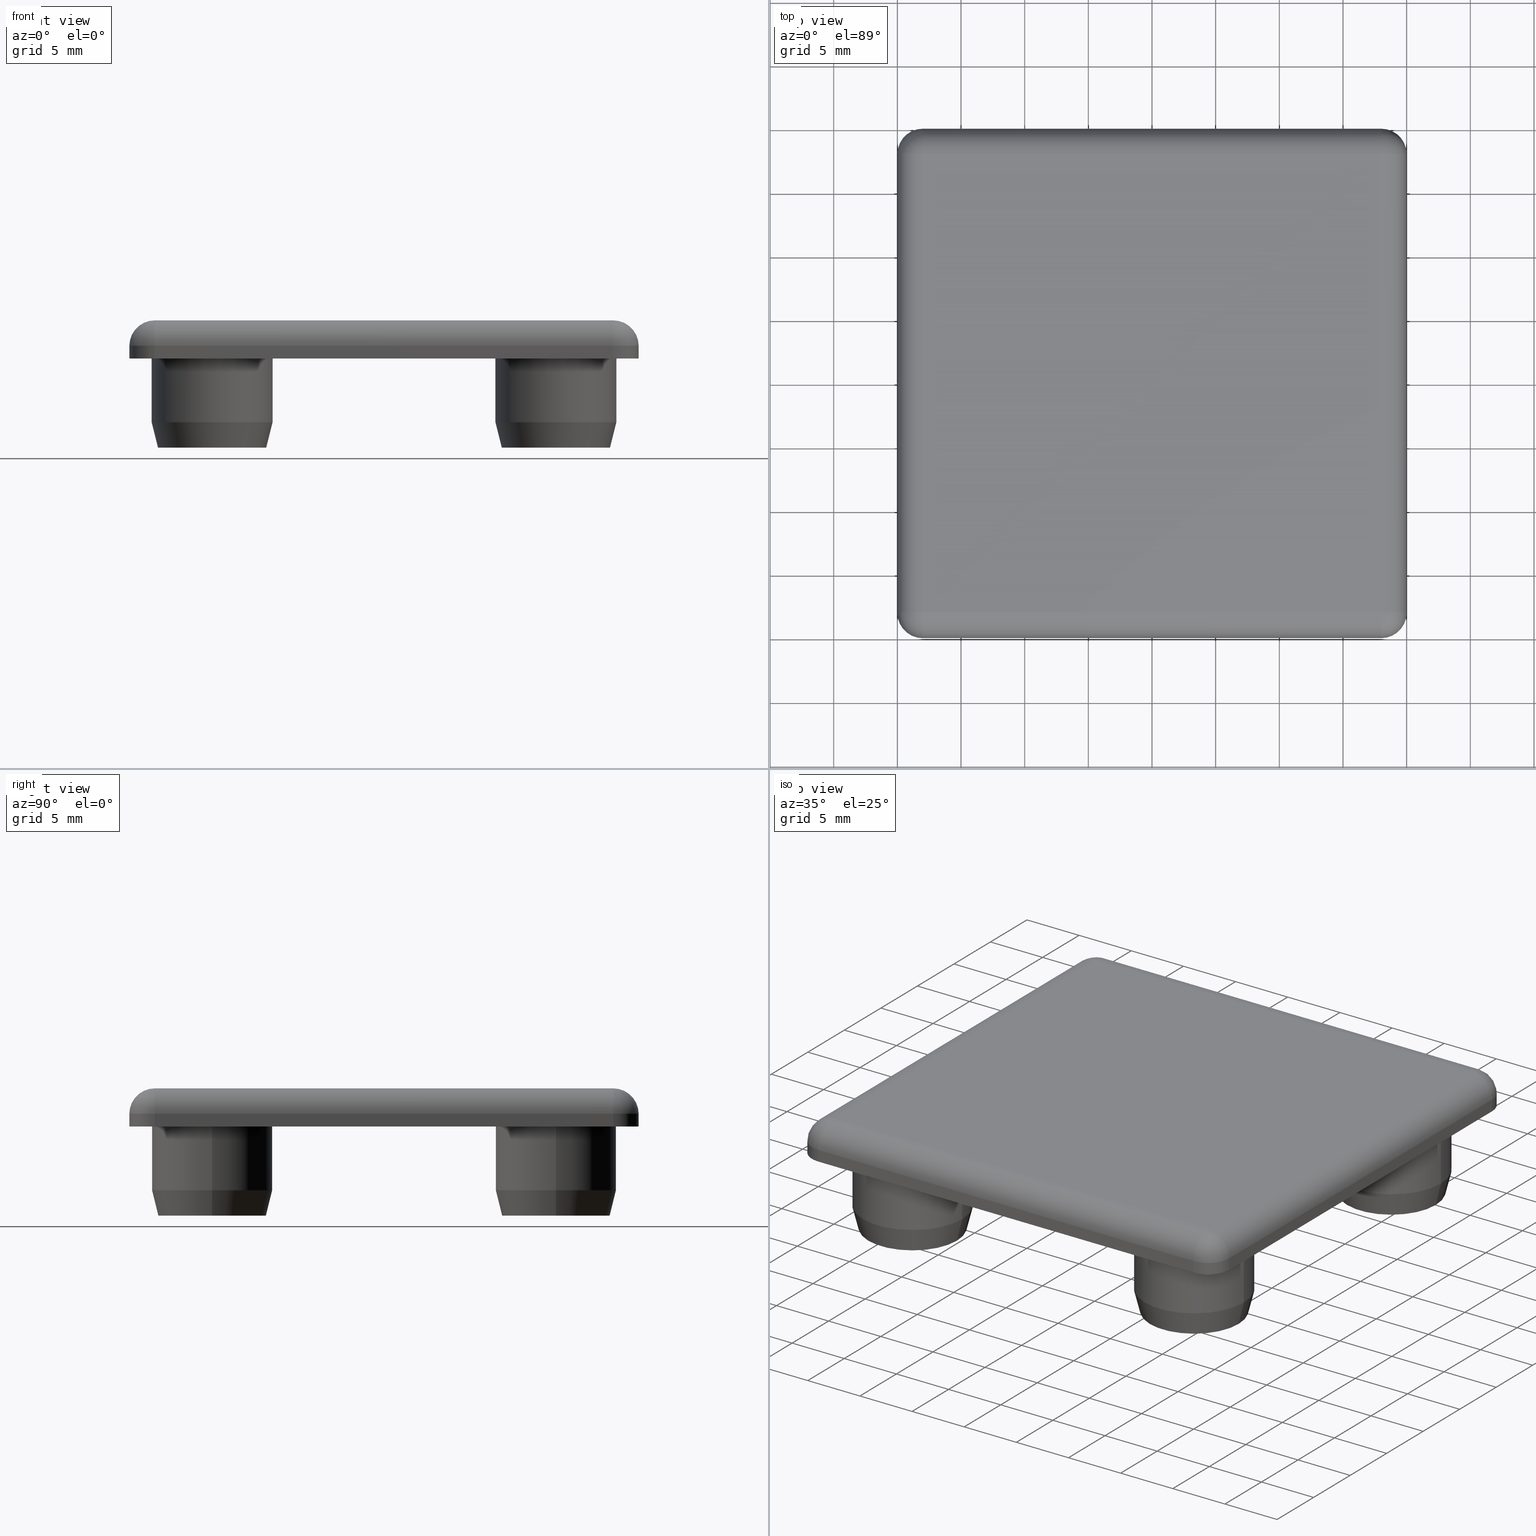
[diagram: canonical four-view strip — front | top / right | iso, engineering-drawing reading convention]
A machine part, canonical four-view strip (front | top / right | iso — engineering-drawing reading convention). The complete STEP part file that produces these views, byte-faithful:
ISO-10303-21;
HEADER;
/* Generated by software containing ST-Developer
 * from STEP Tools, Inc. (www.steptools.com) 
 */

FILE_DESCRIPTION(
/* description */ ('TAPPO 40x40 NERO GOLA 45'),
/* implementation_level */ '2;1');

FILE_NAME(
/* name */ 
'Q:\\Catalogo\\2_Accessori Dierre\\Per Download Web e catalogo cartace
o\\CATALOGO TAPPI DI CHIUSURA\\PAGINA 89\\DTPTR0000038.stp',
/* time_stamp */ '2018-11-08T12:38:21+01:00',
/* author */ ('fzagni'),
/* organization */ (''),
/* preprocessor_version */ 'ST-DEVELOPER v16.1',
/* originating_system */ 'Autodesk Inventor 2016',
/* authorisation */ '');

FILE_SCHEMA (('AUTOMOTIVE_DESIGN { 1 0 10303 214 3 1 1 }'));
ENDSEC;

DATA;
#10=MECHANICAL_DESIGN_GEOMETRIC_PRESENTATION_REPRESENTATION('',(#13),#875);
#11=SHAPE_REPRESENTATION_RELATIONSHIP('SRR','None',#884,#12);
#12=ADVANCED_BREP_SHAPE_REPRESENTATION('',(#14),#874);
#13=STYLED_ITEM('',(#893),#14);
#14=MANIFOLD_SOLID_BREP('Solido1',#491);
#15=SPHERICAL_SURFACE('',#541,2.);
#16=SPHERICAL_SURFACE('',#545,2.);
#17=SPHERICAL_SURFACE('',#549,2.);
#18=SPHERICAL_SURFACE('',#555,2.);
#19=LINE('',#800,#39);
#20=LINE('',#804,#40);
#21=LINE('',#808,#41);
#22=LINE('',#810,#42);
#23=LINE('',#811,#43);
#24=LINE('',#817,#44);
#25=LINE('',#821,#45);
#26=LINE('',#825,#46);
#27=LINE('',#828,#47);
#28=LINE('',#834,#48);
#29=LINE('',#835,#49);
#30=LINE('',#841,#50);
#31=LINE('',#842,#51);
#32=LINE('',#850,#52);
#33=LINE('',#851,#53);
#34=LINE('',#853,#54);
#35=LINE('',#861,#55);
#36=LINE('',#862,#56);
#37=LINE('',#864,#57);
#38=LINE('',#866,#58);
#39=VECTOR('',#649,36.);
#40=VECTOR('',#652,36.);
#41=VECTOR('',#657,36.);
#42=VECTOR('',#658,36.);
#43=VECTOR('',#659,36.);
#44=VECTOR('',#664,36.);
#45=VECTOR('',#667,36.);
#46=VECTOR('',#670,36.);
#47=VECTOR('',#673,36.);
#48=VECTOR('',#682,1.);
#49=VECTOR('',#683,1.);
#50=VECTOR('',#692,1.);
#51=VECTOR('',#693,1.);
#52=VECTOR('',#704,1.);
#53=VECTOR('',#705,1.);
#54=VECTOR('',#708,36.);
#55=VECTOR('',#719,1.);
#56=VECTOR('',#720,1.);
#57=VECTOR('',#723,36.);
#58=VECTOR('',#726,36.);
#59=PLANE('',#498);
#60=PLANE('',#507);
#61=PLANE('',#516);
#62=PLANE('',#520);
#63=PLANE('',#521);
#64=PLANE('',#522);
#65=PLANE('',#528);
#66=PLANE('',#535);
#67=PLANE('',#536);
#68=PLANE('',#562);
#69=PLANE('',#563);
#70=PLANE('',#564);
#71=PLANE('',#565);
#72=PLANE('',#566);
#73=CYLINDRICAL_SURFACE('',#496,4.75);
#74=CYLINDRICAL_SURFACE('',#500,3.25);
#75=CYLINDRICAL_SURFACE('',#505,4.75);
#76=CYLINDRICAL_SURFACE('',#509,3.25);
#77=CYLINDRICAL_SURFACE('',#514,4.75);
#78=CYLINDRICAL_SURFACE('',#518,3.25);
#79=CYLINDRICAL_SURFACE('',#526,4.75);
#80=CYLINDRICAL_SURFACE('',#530,3.25);
#81=CYLINDRICAL_SURFACE('',#532,2.);
#82=CYLINDRICAL_SURFACE('',#544,2.);
#83=CYLINDRICAL_SURFACE('',#548,2.);
#84=CYLINDRICAL_SURFACE('',#553,2.);
#85=CYLINDRICAL_SURFACE('',#554,2.);
#86=CYLINDRICAL_SURFACE('',#559,2.);
#87=CYLINDRICAL_SURFACE('',#560,2.);
#88=CYLINDRICAL_SURFACE('',#561,2.);
#89=FACE_BOUND('',#148,.T.);
#90=FACE_BOUND('',#150,.T.);
#91=FACE_BOUND('',#152,.T.);
#92=FACE_BOUND('',#154,.T.);
#93=FACE_BOUND('',#156,.T.);
#94=FACE_BOUND('',#158,.T.);
#95=FACE_BOUND('',#160,.T.);
#96=FACE_BOUND('',#162,.T.);
#97=FACE_BOUND('',#164,.T.);
#98=FACE_BOUND('',#166,.T.);
#99=FACE_BOUND('',#168,.T.);
#100=FACE_BOUND('',#170,.T.);
#101=FACE_BOUND('',#175,.T.);
#102=FACE_BOUND('',#177,.T.);
#103=FACE_BOUND('',#179,.T.);
#104=FACE_BOUND('',#181,.T.);
#105=FACE_BOUND('',#185,.T.);
#106=FACE_BOUND('',#186,.T.);
#107=FACE_BOUND('',#187,.T.);
#108=FACE_BOUND('',#188,.T.);
#109=FACE_OUTER_BOUND('',#147,.T.);
#110=FACE_OUTER_BOUND('',#149,.T.);
#111=FACE_OUTER_BOUND('',#151,.T.);
#112=FACE_OUTER_BOUND('',#153,.T.);
#113=FACE_OUTER_BOUND('',#155,.T.);
#114=FACE_OUTER_BOUND('',#157,.T.);
#115=FACE_OUTER_BOUND('',#159,.T.);
#116=FACE_OUTER_BOUND('',#161,.T.);
#117=FACE_OUTER_BOUND('',#163,.T.);
#118=FACE_OUTER_BOUND('',#165,.T.);
#119=FACE_OUTER_BOUND('',#167,.T.);
#120=FACE_OUTER_BOUND('',#169,.T.);
#121=FACE_OUTER_BOUND('',#171,.T.);
#122=FACE_OUTER_BOUND('',#172,.T.);
#123=FACE_OUTER_BOUND('',#173,.T.);
#124=FACE_OUTER_BOUND('',#174,.T.);
#125=FACE_OUTER_BOUND('',#176,.T.);
#126=FACE_OUTER_BOUND('',#178,.T.);
#127=FACE_OUTER_BOUND('',#180,.T.);
#128=FACE_OUTER_BOUND('',#182,.T.);
#129=FACE_OUTER_BOUND('',#183,.T.);
#130=FACE_OUTER_BOUND('',#184,.T.);
#131=FACE_OUTER_BOUND('',#189,.T.);
#132=FACE_OUTER_BOUND('',#190,.T.);
#133=FACE_OUTER_BOUND('',#191,.T.);
#134=FACE_OUTER_BOUND('',#192,.T.);
#135=FACE_OUTER_BOUND('',#193,.T.);
#136=FACE_OUTER_BOUND('',#194,.T.);
#137=FACE_OUTER_BOUND('',#195,.T.);
#138=FACE_OUTER_BOUND('',#196,.T.);
#139=FACE_OUTER_BOUND('',#197,.T.);
#140=FACE_OUTER_BOUND('',#198,.T.);
#141=FACE_OUTER_BOUND('',#199,.T.);
#142=FACE_OUTER_BOUND('',#200,.T.);
#143=FACE_OUTER_BOUND('',#201,.T.);
#144=FACE_OUTER_BOUND('',#202,.T.);
#145=FACE_OUTER_BOUND('',#203,.T.);
#146=FACE_OUTER_BOUND('',#204,.T.);
#147=EDGE_LOOP('',(#337));
#148=EDGE_LOOP('',(#338));
#149=EDGE_LOOP('',(#339));
#150=EDGE_LOOP('',(#340));
#151=EDGE_LOOP('',(#341));
#152=EDGE_LOOP('',(#342));
#153=EDGE_LOOP('',(#343));
#154=EDGE_LOOP('',(#344));
#155=EDGE_LOOP('',(#345));
#156=EDGE_LOOP('',(#346));
#157=EDGE_LOOP('',(#347));
#158=EDGE_LOOP('',(#348));
#159=EDGE_LOOP('',(#349));
#160=EDGE_LOOP('',(#350));
#161=EDGE_LOOP('',(#351));
#162=EDGE_LOOP('',(#352));
#163=EDGE_LOOP('',(#353));
#164=EDGE_LOOP('',(#354));
#165=EDGE_LOOP('',(#355));
#166=EDGE_LOOP('',(#356));
#167=EDGE_LOOP('',(#357));
#168=EDGE_LOOP('',(#358));
#169=EDGE_LOOP('',(#359));
#170=EDGE_LOOP('',(#360));
#171=EDGE_LOOP('',(#361));
#172=EDGE_LOOP('',(#362));
#173=EDGE_LOOP('',(#363));
#174=EDGE_LOOP('',(#364));
#175=EDGE_LOOP('',(#365));
#176=EDGE_LOOP('',(#366));
#177=EDGE_LOOP('',(#367));
#178=EDGE_LOOP('',(#368));
#179=EDGE_LOOP('',(#369));
#180=EDGE_LOOP('',(#370));
#181=EDGE_LOOP('',(#371));
#182=EDGE_LOOP('',(#372,#373,#374,#375));
#183=EDGE_LOOP('',(#376,#377,#378,#379));
#184=EDGE_LOOP('',(#380,#381,#382,#383,#384,#385,#386,#387));
#185=EDGE_LOOP('',(#388));
#186=EDGE_LOOP('',(#389));
#187=EDGE_LOOP('',(#390));
#188=EDGE_LOOP('',(#391));
#189=EDGE_LOOP('',(#392,#393,#394));
#190=EDGE_LOOP('',(#395,#396,#397,#398));
#191=EDGE_LOOP('',(#399,#400,#401));
#192=EDGE_LOOP('',(#402,#403,#404,#405));
#193=EDGE_LOOP('',(#406,#407,#408));
#194=EDGE_LOOP('',(#409,#410,#411,#412));
#195=EDGE_LOOP('',(#413,#414,#415,#416));
#196=EDGE_LOOP('',(#417,#418,#419));
#197=EDGE_LOOP('',(#420,#421,#422,#423));
#198=EDGE_LOOP('',(#424,#425,#426,#427));
#199=EDGE_LOOP('',(#428,#429,#430,#431));
#200=EDGE_LOOP('',(#432,#433,#434,#435));
#201=EDGE_LOOP('',(#436,#437,#438,#439));
#202=EDGE_LOOP('',(#440));
#203=EDGE_LOOP('',(#441,#442,#443,#444));
#204=EDGE_LOOP('',(#445,#446,#447,#448));
#205=CIRCLE('',#494,4.75);
#206=CIRCLE('',#495,4.25);
#207=CIRCLE('',#497,4.75);
#208=CIRCLE('',#499,3.25);
#209=CIRCLE('',#501,3.25);
#210=CIRCLE('',#503,4.75);
#211=CIRCLE('',#504,4.25);
#212=CIRCLE('',#506,4.75);
#213=CIRCLE('',#508,3.25);
#214=CIRCLE('',#510,3.25);
#215=CIRCLE('',#512,4.75);
#216=CIRCLE('',#513,4.25);
#217=CIRCLE('',#515,4.75);
#218=CIRCLE('',#517,3.25);
#219=CIRCLE('',#519,3.25);
#220=CIRCLE('',#524,4.75);
#221=CIRCLE('',#525,4.25);
#222=CIRCLE('',#527,4.75);
#223=CIRCLE('',#529,3.25);
#224=CIRCLE('',#531,3.25);
#225=CIRCLE('',#533,2.);
#226=CIRCLE('',#534,2.);
#227=CIRCLE('',#537,2.);
#228=CIRCLE('',#538,2.);
#229=CIRCLE('',#539,2.);
#230=CIRCLE('',#540,2.);
#231=CIRCLE('',#542,2.);
#232=CIRCLE('',#543,2.);
#233=CIRCLE('',#546,2.);
#234=CIRCLE('',#547,2.);
#235=CIRCLE('',#550,2.);
#236=CIRCLE('',#551,2.);
#237=CIRCLE('',#552,2.);
#238=CIRCLE('',#556,2.);
#239=CIRCLE('',#557,2.);
#240=CIRCLE('',#558,2.);
#241=VERTEX_POINT('',#739);
#242=VERTEX_POINT('',#741);
#243=VERTEX_POINT('',#744);
#244=VERTEX_POINT('',#747);
#245=VERTEX_POINT('',#750);
#246=VERTEX_POINT('',#753);
#247=VERTEX_POINT('',#755);
#248=VERTEX_POINT('',#758);
#249=VERTEX_POINT('',#761);
#250=VERTEX_POINT('',#764);
#251=VERTEX_POINT('',#767);
#252=VERTEX_POINT('',#769);
#253=VERTEX_POINT('',#772);
#254=VERTEX_POINT('',#775);
#255=VERTEX_POINT('',#778);
#256=VERTEX_POINT('',#784);
#257=VERTEX_POINT('',#786);
#258=VERTEX_POINT('',#789);
#259=VERTEX_POINT('',#792);
#260=VERTEX_POINT('',#795);
#261=VERTEX_POINT('',#798);
#262=VERTEX_POINT('',#799);
#263=VERTEX_POINT('',#801);
#264=VERTEX_POINT('',#803);
#265=VERTEX_POINT('',#807);
#266=VERTEX_POINT('',#809);
#267=VERTEX_POINT('',#813);
#268=VERTEX_POINT('',#814);
#269=VERTEX_POINT('',#816);
#270=VERTEX_POINT('',#818);
#271=VERTEX_POINT('',#820);
#272=VERTEX_POINT('',#822);
#273=VERTEX_POINT('',#824);
#274=VERTEX_POINT('',#826);
#275=VERTEX_POINT('',#830);
#276=VERTEX_POINT('',#837);
#277=VERTEX_POINT('',#844);
#278=VERTEX_POINT('',#846);
#279=VERTEX_POINT('',#855);
#280=VERTEX_POINT('',#857);
#281=EDGE_CURVE('',#241,#241,#205,.T.);
#282=EDGE_CURVE('',#242,#242,#206,.T.);
#283=EDGE_CURVE('',#243,#243,#207,.T.);
#284=EDGE_CURVE('',#244,#244,#208,.T.);
#285=EDGE_CURVE('',#245,#245,#209,.T.);
#286=EDGE_CURVE('',#246,#246,#210,.T.);
#287=EDGE_CURVE('',#247,#247,#211,.T.);
#288=EDGE_CURVE('',#248,#248,#212,.T.);
#289=EDGE_CURVE('',#249,#249,#213,.T.);
#290=EDGE_CURVE('',#250,#250,#214,.T.);
#291=EDGE_CURVE('',#251,#251,#215,.T.);
#292=EDGE_CURVE('',#252,#252,#216,.T.);
#293=EDGE_CURVE('',#253,#253,#217,.T.);
#294=EDGE_CURVE('',#254,#254,#218,.T.);
#295=EDGE_CURVE('',#255,#255,#219,.T.);
#296=EDGE_CURVE('',#256,#256,#220,.T.);
#297=EDGE_CURVE('',#257,#257,#221,.T.);
#298=EDGE_CURVE('',#258,#258,#222,.T.);
#299=EDGE_CURVE('',#259,#259,#223,.T.);
#300=EDGE_CURVE('',#260,#260,#224,.T.);
#301=EDGE_CURVE('',#261,#262,#19,.T.);
#302=EDGE_CURVE('',#262,#263,#225,.F.);
#303=EDGE_CURVE('',#263,#264,#20,.T.);
#304=EDGE_CURVE('',#264,#261,#226,.F.);
#305=EDGE_CURVE('',#265,#261,#21,.T.);
#306=EDGE_CURVE('',#266,#265,#22,.T.);
#307=EDGE_CURVE('',#262,#266,#23,.T.);
#308=EDGE_CURVE('',#267,#268,#227,.T.);
#309=EDGE_CURVE('',#267,#269,#24,.T.);
#310=EDGE_CURVE('',#270,#269,#228,.T.);
#311=EDGE_CURVE('',#270,#271,#25,.T.);
#312=EDGE_CURVE('',#272,#271,#229,.T.);
#313=EDGE_CURVE('',#272,#273,#26,.T.);
#314=EDGE_CURVE('',#274,#273,#230,.T.);
#315=EDGE_CURVE('',#274,#268,#27,.T.);
#316=EDGE_CURVE('',#275,#262,#231,.F.);
#317=EDGE_CURVE('',#263,#275,#232,.F.);
#318=EDGE_CURVE('',#268,#263,#28,.T.);
#319=EDGE_CURVE('',#275,#267,#29,.T.);
#320=EDGE_CURVE('',#276,#264,#233,.F.);
#321=EDGE_CURVE('',#261,#276,#234,.F.);
#322=EDGE_CURVE('',#273,#276,#30,.T.);
#323=EDGE_CURVE('',#264,#274,#31,.T.);
#324=EDGE_CURVE('',#277,#266,#235,.F.);
#325=EDGE_CURVE('',#278,#277,#236,.F.);
#326=EDGE_CURVE('',#266,#278,#237,.F.);
#327=EDGE_CURVE('',#269,#278,#32,.T.);
#328=EDGE_CURVE('',#277,#270,#33,.T.);
#329=EDGE_CURVE('',#278,#275,#34,.T.);
#330=EDGE_CURVE('',#279,#265,#238,.F.);
#331=EDGE_CURVE('',#280,#279,#239,.F.);
#332=EDGE_CURVE('',#265,#280,#240,.F.);
#333=EDGE_CURVE('',#271,#280,#35,.T.);
#334=EDGE_CURVE('',#279,#272,#36,.T.);
#335=EDGE_CURVE('',#280,#277,#37,.T.);
#336=EDGE_CURVE('',#276,#279,#38,.T.);
#337=ORIENTED_EDGE('',*,*,#281,.T.);
#338=ORIENTED_EDGE('',*,*,#282,.T.);
#339=ORIENTED_EDGE('',*,*,#283,.F.);
#340=ORIENTED_EDGE('',*,*,#281,.F.);
#341=ORIENTED_EDGE('',*,*,#282,.F.);
#342=ORIENTED_EDGE('',*,*,#284,.T.);
#343=ORIENTED_EDGE('',*,*,#284,.F.);
#344=ORIENTED_EDGE('',*,*,#285,.F.);
#345=ORIENTED_EDGE('',*,*,#286,.T.);
#346=ORIENTED_EDGE('',*,*,#287,.T.);
#347=ORIENTED_EDGE('',*,*,#288,.F.);
#348=ORIENTED_EDGE('',*,*,#286,.F.);
#349=ORIENTED_EDGE('',*,*,#287,.F.);
#350=ORIENTED_EDGE('',*,*,#289,.T.);
#351=ORIENTED_EDGE('',*,*,#289,.F.);
#352=ORIENTED_EDGE('',*,*,#290,.F.);
#353=ORIENTED_EDGE('',*,*,#291,.T.);
#354=ORIENTED_EDGE('',*,*,#292,.T.);
#355=ORIENTED_EDGE('',*,*,#293,.F.);
#356=ORIENTED_EDGE('',*,*,#291,.F.);
#357=ORIENTED_EDGE('',*,*,#292,.F.);
#358=ORIENTED_EDGE('',*,*,#294,.T.);
#359=ORIENTED_EDGE('',*,*,#294,.F.);
#360=ORIENTED_EDGE('',*,*,#295,.F.);
#361=ORIENTED_EDGE('',*,*,#295,.T.);
#362=ORIENTED_EDGE('',*,*,#290,.T.);
#363=ORIENTED_EDGE('',*,*,#285,.T.);
#364=ORIENTED_EDGE('',*,*,#296,.T.);
#365=ORIENTED_EDGE('',*,*,#297,.T.);
#366=ORIENTED_EDGE('',*,*,#298,.F.);
#367=ORIENTED_EDGE('',*,*,#296,.F.);
#368=ORIENTED_EDGE('',*,*,#297,.F.);
#369=ORIENTED_EDGE('',*,*,#299,.T.);
#370=ORIENTED_EDGE('',*,*,#299,.F.);
#371=ORIENTED_EDGE('',*,*,#300,.F.);
#372=ORIENTED_EDGE('',*,*,#301,.T.);
#373=ORIENTED_EDGE('',*,*,#302,.T.);
#374=ORIENTED_EDGE('',*,*,#303,.T.);
#375=ORIENTED_EDGE('',*,*,#304,.T.);
#376=ORIENTED_EDGE('',*,*,#301,.F.);
#377=ORIENTED_EDGE('',*,*,#305,.F.);
#378=ORIENTED_EDGE('',*,*,#306,.F.);
#379=ORIENTED_EDGE('',*,*,#307,.F.);
#380=ORIENTED_EDGE('',*,*,#308,.F.);
#381=ORIENTED_EDGE('',*,*,#309,.T.);
#382=ORIENTED_EDGE('',*,*,#310,.F.);
#383=ORIENTED_EDGE('',*,*,#311,.T.);
#384=ORIENTED_EDGE('',*,*,#312,.F.);
#385=ORIENTED_EDGE('',*,*,#313,.T.);
#386=ORIENTED_EDGE('',*,*,#314,.F.);
#387=ORIENTED_EDGE('',*,*,#315,.T.);
#388=ORIENTED_EDGE('',*,*,#283,.T.);
#389=ORIENTED_EDGE('',*,*,#288,.T.);
#390=ORIENTED_EDGE('',*,*,#293,.T.);
#391=ORIENTED_EDGE('',*,*,#298,.T.);
#392=ORIENTED_EDGE('',*,*,#316,.F.);
#393=ORIENTED_EDGE('',*,*,#317,.F.);
#394=ORIENTED_EDGE('',*,*,#302,.F.);
#395=ORIENTED_EDGE('',*,*,#308,.T.);
#396=ORIENTED_EDGE('',*,*,#318,.T.);
#397=ORIENTED_EDGE('',*,*,#317,.T.);
#398=ORIENTED_EDGE('',*,*,#319,.T.);
#399=ORIENTED_EDGE('',*,*,#304,.F.);
#400=ORIENTED_EDGE('',*,*,#320,.F.);
#401=ORIENTED_EDGE('',*,*,#321,.F.);
#402=ORIENTED_EDGE('',*,*,#314,.T.);
#403=ORIENTED_EDGE('',*,*,#322,.T.);
#404=ORIENTED_EDGE('',*,*,#320,.T.);
#405=ORIENTED_EDGE('',*,*,#323,.T.);
#406=ORIENTED_EDGE('',*,*,#324,.F.);
#407=ORIENTED_EDGE('',*,*,#325,.F.);
#408=ORIENTED_EDGE('',*,*,#326,.F.);
#409=ORIENTED_EDGE('',*,*,#310,.T.);
#410=ORIENTED_EDGE('',*,*,#327,.T.);
#411=ORIENTED_EDGE('',*,*,#325,.T.);
#412=ORIENTED_EDGE('',*,*,#328,.T.);
#413=ORIENTED_EDGE('',*,*,#307,.T.);
#414=ORIENTED_EDGE('',*,*,#326,.T.);
#415=ORIENTED_EDGE('',*,*,#329,.T.);
#416=ORIENTED_EDGE('',*,*,#316,.T.);
#417=ORIENTED_EDGE('',*,*,#330,.F.);
#418=ORIENTED_EDGE('',*,*,#331,.F.);
#419=ORIENTED_EDGE('',*,*,#332,.F.);
#420=ORIENTED_EDGE('',*,*,#312,.T.);
#421=ORIENTED_EDGE('',*,*,#333,.T.);
#422=ORIENTED_EDGE('',*,*,#331,.T.);
#423=ORIENTED_EDGE('',*,*,#334,.T.);
#424=ORIENTED_EDGE('',*,*,#324,.T.);
#425=ORIENTED_EDGE('',*,*,#306,.T.);
#426=ORIENTED_EDGE('',*,*,#332,.T.);
#427=ORIENTED_EDGE('',*,*,#335,.T.);
#428=ORIENTED_EDGE('',*,*,#330,.T.);
#429=ORIENTED_EDGE('',*,*,#305,.T.);
#430=ORIENTED_EDGE('',*,*,#321,.T.);
#431=ORIENTED_EDGE('',*,*,#336,.T.);
#432=ORIENTED_EDGE('',*,*,#319,.F.);
#433=ORIENTED_EDGE('',*,*,#329,.F.);
#434=ORIENTED_EDGE('',*,*,#327,.F.);
#435=ORIENTED_EDGE('',*,*,#309,.F.);
#436=ORIENTED_EDGE('',*,*,#328,.F.);
#437=ORIENTED_EDGE('',*,*,#335,.F.);
#438=ORIENTED_EDGE('',*,*,#333,.F.);
#439=ORIENTED_EDGE('',*,*,#311,.F.);
#440=ORIENTED_EDGE('',*,*,#300,.T.);
#441=ORIENTED_EDGE('',*,*,#322,.F.);
#442=ORIENTED_EDGE('',*,*,#313,.F.);
#443=ORIENTED_EDGE('',*,*,#334,.F.);
#444=ORIENTED_EDGE('',*,*,#336,.F.);
#445=ORIENTED_EDGE('',*,*,#318,.F.);
#446=ORIENTED_EDGE('',*,*,#315,.F.);
#447=ORIENTED_EDGE('',*,*,#323,.F.);
#448=ORIENTED_EDGE('',*,*,#303,.F.);
#449=CONICAL_SURFACE('',#493,4.5,14.0362434679265);
#450=CONICAL_SURFACE('',#502,4.5,14.0362434679265);
#451=CONICAL_SURFACE('',#511,4.5,14.0362434679265);
#452=CONICAL_SURFACE('',#523,4.5,14.0362434679265);
#453=ADVANCED_FACE('',(#109,#89),#449,.T.);
#454=ADVANCED_FACE('',(#110,#90),#73,.T.);
#455=ADVANCED_FACE('',(#111,#91),#59,.F.);
#456=ADVANCED_FACE('',(#112,#92),#74,.F.);
#457=ADVANCED_FACE('',(#113,#93),#450,.T.);
#458=ADVANCED_FACE('',(#114,#94),#75,.T.);
#459=ADVANCED_FACE('',(#115,#95),#60,.F.);
#460=ADVANCED_FACE('',(#116,#96),#76,.F.);
#461=ADVANCED_FACE('',(#117,#97),#451,.T.);
#462=ADVANCED_FACE('',(#118,#98),#77,.T.);
#463=ADVANCED_FACE('',(#119,#99),#61,.F.);
#464=ADVANCED_FACE('',(#120,#100),#78,.F.);
#465=ADVANCED_FACE('',(#121),#62,.F.);
#466=ADVANCED_FACE('',(#122),#63,.F.);
#467=ADVANCED_FACE('',(#123),#64,.F.);
#468=ADVANCED_FACE('',(#124,#101),#452,.T.);
#469=ADVANCED_FACE('',(#125,#102),#79,.T.);
#470=ADVANCED_FACE('',(#126,#103),#65,.F.);
#471=ADVANCED_FACE('',(#127,#104),#80,.F.);
#472=ADVANCED_FACE('',(#128),#81,.T.);
#473=ADVANCED_FACE('',(#129),#66,.T.);
#474=ADVANCED_FACE('',(#130,#105,#106,#107,#108),#67,.F.);
#475=ADVANCED_FACE('',(#131),#15,.T.);
#476=ADVANCED_FACE('',(#132),#82,.T.);
#477=ADVANCED_FACE('',(#133),#16,.T.);
#478=ADVANCED_FACE('',(#134),#83,.T.);
#479=ADVANCED_FACE('',(#135),#17,.T.);
#480=ADVANCED_FACE('',(#136),#84,.T.);
#481=ADVANCED_FACE('',(#137),#85,.T.);
#482=ADVANCED_FACE('',(#138),#18,.T.);
#483=ADVANCED_FACE('',(#139),#86,.T.);
#484=ADVANCED_FACE('',(#140),#87,.T.);
#485=ADVANCED_FACE('',(#141),#88,.T.);
#486=ADVANCED_FACE('',(#142),#68,.T.);
#487=ADVANCED_FACE('',(#143),#69,.T.);
#488=ADVANCED_FACE('',(#144),#70,.F.);
#489=ADVANCED_FACE('',(#145),#71,.T.);
#490=ADVANCED_FACE('',(#146),#72,.T.);
#491=CLOSED_SHELL('',(#453,#454,#455,#456,#457,#458,#459,#460,#461,#462,
#463,#464,#465,#466,#467,#468,#469,#470,#471,#472,#473,#474,#475,#476,#477,
#478,#479,#480,#481,#482,#483,#484,#485,#486,#487,#488,#489,#490));
#492=AXIS2_PLACEMENT_3D('placement',#737,#567,#568);
#493=AXIS2_PLACEMENT_3D('',#738,#569,#570);
#494=AXIS2_PLACEMENT_3D('',#740,#571,#572);
#495=AXIS2_PLACEMENT_3D('',#742,#573,#574);
#496=AXIS2_PLACEMENT_3D('',#743,#575,#576);
#497=AXIS2_PLACEMENT_3D('',#745,#577,#578);
#498=AXIS2_PLACEMENT_3D('',#746,#579,#580);
#499=AXIS2_PLACEMENT_3D('',#748,#581,#582);
#500=AXIS2_PLACEMENT_3D('',#749,#583,#584);
#501=AXIS2_PLACEMENT_3D('',#751,#585,#586);
#502=AXIS2_PLACEMENT_3D('',#752,#587,#588);
#503=AXIS2_PLACEMENT_3D('',#754,#589,#590);
#504=AXIS2_PLACEMENT_3D('',#756,#591,#592);
#505=AXIS2_PLACEMENT_3D('',#757,#593,#594);
#506=AXIS2_PLACEMENT_3D('',#759,#595,#596);
#507=AXIS2_PLACEMENT_3D('',#760,#597,#598);
#508=AXIS2_PLACEMENT_3D('',#762,#599,#600);
#509=AXIS2_PLACEMENT_3D('',#763,#601,#602);
#510=AXIS2_PLACEMENT_3D('',#765,#603,#604);
#511=AXIS2_PLACEMENT_3D('',#766,#605,#606);
#512=AXIS2_PLACEMENT_3D('',#768,#607,#608);
#513=AXIS2_PLACEMENT_3D('',#770,#609,#610);
#514=AXIS2_PLACEMENT_3D('',#771,#611,#612);
#515=AXIS2_PLACEMENT_3D('',#773,#613,#614);
#516=AXIS2_PLACEMENT_3D('',#774,#615,#616);
#517=AXIS2_PLACEMENT_3D('',#776,#617,#618);
#518=AXIS2_PLACEMENT_3D('',#777,#619,#620);
#519=AXIS2_PLACEMENT_3D('',#779,#621,#622);
#520=AXIS2_PLACEMENT_3D('',#780,#623,#624);
#521=AXIS2_PLACEMENT_3D('',#781,#625,#626);
#522=AXIS2_PLACEMENT_3D('',#782,#627,#628);
#523=AXIS2_PLACEMENT_3D('',#783,#629,#630);
#524=AXIS2_PLACEMENT_3D('',#785,#631,#632);
#525=AXIS2_PLACEMENT_3D('',#787,#633,#634);
#526=AXIS2_PLACEMENT_3D('',#788,#635,#636);
#527=AXIS2_PLACEMENT_3D('',#790,#637,#638);
#528=AXIS2_PLACEMENT_3D('',#791,#639,#640);
#529=AXIS2_PLACEMENT_3D('',#793,#641,#642);
#530=AXIS2_PLACEMENT_3D('',#794,#643,#644);
#531=AXIS2_PLACEMENT_3D('',#796,#645,#646);
#532=AXIS2_PLACEMENT_3D('',#797,#647,#648);
#533=AXIS2_PLACEMENT_3D('',#802,#650,#651);
#534=AXIS2_PLACEMENT_3D('',#805,#653,#654);
#535=AXIS2_PLACEMENT_3D('',#806,#655,#656);
#536=AXIS2_PLACEMENT_3D('',#812,#660,#661);
#537=AXIS2_PLACEMENT_3D('',#815,#662,#663);
#538=AXIS2_PLACEMENT_3D('',#819,#665,#666);
#539=AXIS2_PLACEMENT_3D('',#823,#668,#669);
#540=AXIS2_PLACEMENT_3D('',#827,#671,#672);
#541=AXIS2_PLACEMENT_3D('',#829,#674,#675);
#542=AXIS2_PLACEMENT_3D('',#831,#676,#677);
#543=AXIS2_PLACEMENT_3D('',#832,#678,#679);
#544=AXIS2_PLACEMENT_3D('',#833,#680,#681);
#545=AXIS2_PLACEMENT_3D('',#836,#684,#685);
#546=AXIS2_PLACEMENT_3D('',#838,#686,#687);
#547=AXIS2_PLACEMENT_3D('',#839,#688,#689);
#548=AXIS2_PLACEMENT_3D('',#840,#690,#691);
#549=AXIS2_PLACEMENT_3D('',#843,#694,#695);
#550=AXIS2_PLACEMENT_3D('',#845,#696,#697);
#551=AXIS2_PLACEMENT_3D('',#847,#698,#699);
#552=AXIS2_PLACEMENT_3D('',#848,#700,#701);
#553=AXIS2_PLACEMENT_3D('',#849,#702,#703);
#554=AXIS2_PLACEMENT_3D('',#852,#706,#707);
#555=AXIS2_PLACEMENT_3D('',#854,#709,#710);
#556=AXIS2_PLACEMENT_3D('',#856,#711,#712);
#557=AXIS2_PLACEMENT_3D('',#858,#713,#714);
#558=AXIS2_PLACEMENT_3D('',#859,#715,#716);
#559=AXIS2_PLACEMENT_3D('',#860,#717,#718);
#560=AXIS2_PLACEMENT_3D('',#863,#721,#722);
#561=AXIS2_PLACEMENT_3D('',#865,#724,#725);
#562=AXIS2_PLACEMENT_3D('',#867,#727,#728);
#563=AXIS2_PLACEMENT_3D('',#868,#729,#730);
#564=AXIS2_PLACEMENT_3D('',#869,#731,#732);
#565=AXIS2_PLACEMENT_3D('',#870,#733,#734);
#566=AXIS2_PLACEMENT_3D('',#871,#735,#736);
#567=DIRECTION('axis',(0.,0.,1.));
#568=DIRECTION('refdir',(1.,0.,0.));
#569=DIRECTION('center_axis',(0.,0.,1.));
#570=DIRECTION('ref_axis',(-1.,0.,0.));
#571=DIRECTION('center_axis',(0.,0.,-1.));
#572=DIRECTION('ref_axis',(-1.,0.,0.));
#573=DIRECTION('center_axis',(0.,0.,1.));
#574=DIRECTION('ref_axis',(-1.,0.,0.));
#575=DIRECTION('center_axis',(0.,0.,1.));
#576=DIRECTION('ref_axis',(-1.,0.,0.));
#577=DIRECTION('center_axis',(0.,0.,1.));
#578=DIRECTION('ref_axis',(-1.,0.,0.));
#579=DIRECTION('center_axis',(0.,0.,1.));
#580=DIRECTION('ref_axis',(1.,0.,0.));
#581=DIRECTION('center_axis',(0.,0.,1.));
#582=DIRECTION('ref_axis',(-1.,0.,0.));
#583=DIRECTION('center_axis',(0.,0.,1.));
#584=DIRECTION('ref_axis',(-1.,0.,0.));
#585=DIRECTION('center_axis',(0.,0.,-1.));
#586=DIRECTION('ref_axis',(-1.,0.,0.));
#587=DIRECTION('center_axis',(0.,0.,1.));
#588=DIRECTION('ref_axis',(-1.,0.,0.));
#589=DIRECTION('center_axis',(0.,0.,-1.));
#590=DIRECTION('ref_axis',(-1.,0.,0.));
#591=DIRECTION('center_axis',(0.,0.,1.));
#592=DIRECTION('ref_axis',(-1.,0.,0.));
#593=DIRECTION('center_axis',(0.,0.,1.));
#594=DIRECTION('ref_axis',(-1.,0.,0.));
#595=DIRECTION('center_axis',(0.,0.,1.));
#596=DIRECTION('ref_axis',(-1.,0.,0.));
#597=DIRECTION('center_axis',(0.,0.,1.));
#598=DIRECTION('ref_axis',(1.,0.,0.));
#599=DIRECTION('center_axis',(0.,0.,1.));
#600=DIRECTION('ref_axis',(-1.,0.,0.));
#601=DIRECTION('center_axis',(0.,0.,1.));
#602=DIRECTION('ref_axis',(-1.,0.,0.));
#603=DIRECTION('center_axis',(0.,0.,-1.));
#604=DIRECTION('ref_axis',(-1.,0.,0.));
#605=DIRECTION('center_axis',(0.,0.,1.));
#606=DIRECTION('ref_axis',(-1.,0.,0.));
#607=DIRECTION('center_axis',(0.,0.,-1.));
#608=DIRECTION('ref_axis',(-1.,0.,0.));
#609=DIRECTION('center_axis',(0.,0.,1.));
#610=DIRECTION('ref_axis',(-1.,0.,0.));
#611=DIRECTION('center_axis',(0.,0.,1.));
#612=DIRECTION('ref_axis',(-1.,0.,0.));
#613=DIRECTION('center_axis',(0.,0.,1.));
#614=DIRECTION('ref_axis',(-1.,0.,0.));
#615=DIRECTION('center_axis',(0.,0.,1.));
#616=DIRECTION('ref_axis',(1.,0.,0.));
#617=DIRECTION('center_axis',(0.,0.,1.));
#618=DIRECTION('ref_axis',(-1.,0.,0.));
#619=DIRECTION('center_axis',(0.,0.,1.));
#620=DIRECTION('ref_axis',(-1.,0.,0.));
#621=DIRECTION('center_axis',(0.,0.,-1.));
#622=DIRECTION('ref_axis',(-1.,0.,0.));
#623=DIRECTION('center_axis',(0.,0.,1.));
#624=DIRECTION('ref_axis',(1.,0.,0.));
#625=DIRECTION('center_axis',(0.,0.,1.));
#626=DIRECTION('ref_axis',(1.,0.,0.));
#627=DIRECTION('center_axis',(0.,0.,1.));
#628=DIRECTION('ref_axis',(1.,0.,0.));
#629=DIRECTION('center_axis',(0.,0.,1.));
#630=DIRECTION('ref_axis',(-1.,0.,0.));
#631=DIRECTION('center_axis',(0.,0.,-1.));
#632=DIRECTION('ref_axis',(-1.,0.,0.));
#633=DIRECTION('center_axis',(0.,0.,1.));
#634=DIRECTION('ref_axis',(-1.,0.,0.));
#635=DIRECTION('center_axis',(0.,0.,1.));
#636=DIRECTION('ref_axis',(-1.,0.,0.));
#637=DIRECTION('center_axis',(0.,0.,1.));
#638=DIRECTION('ref_axis',(-1.,0.,0.));
#639=DIRECTION('center_axis',(0.,0.,1.));
#640=DIRECTION('ref_axis',(1.,0.,0.));
#641=DIRECTION('center_axis',(0.,0.,1.));
#642=DIRECTION('ref_axis',(-1.,0.,0.));
#643=DIRECTION('center_axis',(0.,0.,1.));
#644=DIRECTION('ref_axis',(-1.,0.,0.));
#645=DIRECTION('center_axis',(0.,0.,-1.));
#646=DIRECTION('ref_axis',(-1.,0.,0.));
#647=DIRECTION('center_axis',(-1.,-2.22044604925031E-16,0.));
#648=DIRECTION('ref_axis',(0.,0.707106781186548,0.707106781186547));
#649=DIRECTION('',(1.,2.22044604925031E-16,0.));
#650=DIRECTION('center_axis',(1.,-1.11022302462516E-15,0.));
#651=DIRECTION('ref_axis',(0.,0.,1.));
#652=DIRECTION('',(-1.,-2.22044604925031E-16,0.));
#653=DIRECTION('center_axis',(-1.,0.,0.));
#654=DIRECTION('ref_axis',(0.,1.,0.));
#655=DIRECTION('center_axis',(0.,0.,1.));
#656=DIRECTION('ref_axis',(1.,0.,0.));
#657=DIRECTION('',(0.,1.,0.));
#658=DIRECTION('',(-1.,-1.11022302462516E-16,0.));
#659=DIRECTION('',(5.55111512312578E-17,-1.,0.));
#660=DIRECTION('center_axis',(0.,0.,1.));
#661=DIRECTION('ref_axis',(1.,0.,0.));
#662=DIRECTION('center_axis',(0.,0.,1.));
#663=DIRECTION('ref_axis',(0.707106781186547,0.707106781186548,0.));
#664=DIRECTION('',(5.55111512312578E-17,-1.,0.));
#665=DIRECTION('center_axis',(0.,0.,1.));
#666=DIRECTION('ref_axis',(0.707106781186548,-0.707106781186548,0.));
#667=DIRECTION('',(-1.,-1.11022302462516E-16,0.));
#668=DIRECTION('center_axis',(0.,0.,1.));
#669=DIRECTION('ref_axis',(-0.707106781186548,-0.707106781186547,0.));
#670=DIRECTION('',(0.,1.,0.));
#671=DIRECTION('center_axis',(0.,0.,1.));
#672=DIRECTION('ref_axis',(-0.707106781186548,0.707106781186548,0.));
#673=DIRECTION('',(1.,2.22044604925031E-16,0.));
#674=DIRECTION('center_axis',(-0.816496580927727,0.408248290463863,0.408248290463862));
#675=DIRECTION('ref_axis',(0.577350269189624,0.577350269189628,0.577350269189626));
#676=DIRECTION('center_axis',(0.,1.,-2.22044604925031E-15));
#677=DIRECTION('ref_axis',(1.,0.,0.));
#678=DIRECTION('center_axis',(0.,0.,1.));
#679=DIRECTION('ref_axis',(0.,1.,0.));
#680=DIRECTION('center_axis',(0.,0.,1.));
#681=DIRECTION('ref_axis',(0.707106781186547,0.707106781186548,0.));
#682=DIRECTION('',(0.,0.,1.));
#683=DIRECTION('',(0.,0.,-1.));
#684=DIRECTION('center_axis',(-0.408248290463863,0.408248290463863,-0.816496580927726));
#685=DIRECTION('ref_axis',(-0.577350269189626,0.577350269189626,0.577350269189625));
#686=DIRECTION('center_axis',(0.,0.,1.));
#687=DIRECTION('ref_axis',(-1.,0.,0.));
#688=DIRECTION('center_axis',(0.,1.,0.));
#689=DIRECTION('ref_axis',(0.,0.,1.));
#690=DIRECTION('center_axis',(0.,0.,1.));
#691=DIRECTION('ref_axis',(-0.707106781186548,0.707106781186548,0.));
#692=DIRECTION('',(0.,0.,1.));
#693=DIRECTION('',(0.,0.,-1.));
#694=DIRECTION('center_axis',(0.408248290463863,-0.408248290463863,-0.816496580927726));
#695=DIRECTION('ref_axis',(0.577350269189627,-0.577350269189625,0.577350269189626));
#696=DIRECTION('center_axis',(1.,0.,0.));
#697=DIRECTION('ref_axis',(0.,-1.,0.));
#698=DIRECTION('center_axis',(0.,0.,1.));
#699=DIRECTION('ref_axis',(1.,0.,0.));
#700=DIRECTION('center_axis',(-2.22044604925031E-15,-1.,0.));
#701=DIRECTION('ref_axis',(0.,0.,1.));
#702=DIRECTION('center_axis',(0.,0.,1.));
#703=DIRECTION('ref_axis',(0.707106781186548,-0.707106781186548,0.));
#704=DIRECTION('',(0.,0.,1.));
#705=DIRECTION('',(0.,0.,-1.));
#706=DIRECTION('center_axis',(-5.55111512312578E-17,1.,0.));
#707=DIRECTION('ref_axis',(0.707106781186547,0.,0.707106781186548));
#708=DIRECTION('',(-5.55111512312578E-17,1.,0.));
#709=DIRECTION('center_axis',(-0.408248290463864,-0.408248290463862,-0.816496580927726));
#710=DIRECTION('ref_axis',(-0.577350269189627,-0.577350269189625,0.577350269189626));
#711=DIRECTION('center_axis',(0.,-1.,0.));
#712=DIRECTION('ref_axis',(-1.,0.,0.));
#713=DIRECTION('center_axis',(0.,0.,1.));
#714=DIRECTION('ref_axis',(0.,-1.,0.));
#715=DIRECTION('center_axis',(-1.,-1.11022302462516E-15,0.));
#716=DIRECTION('ref_axis',(0.,0.,1.));
#717=DIRECTION('center_axis',(0.,0.,1.));
#718=DIRECTION('ref_axis',(-0.707106781186548,-0.707106781186547,0.));
#719=DIRECTION('',(0.,0.,1.));
#720=DIRECTION('',(0.,0.,-1.));
#721=DIRECTION('center_axis',(1.,1.11022302462516E-16,0.));
#722=DIRECTION('ref_axis',(0.,-0.707106781186548,0.707106781186547));
#723=DIRECTION('',(1.,1.11022302462516E-16,0.));
#724=DIRECTION('center_axis',(0.,-1.,0.));
#725=DIRECTION('ref_axis',(-0.707106781186547,0.,0.707106781186548));
#726=DIRECTION('',(0.,-1.,0.));
#727=DIRECTION('center_axis',(1.,5.55111512312578E-17,0.));
#728=DIRECTION('ref_axis',(0.,1.,0.));
#729=DIRECTION('center_axis',(1.11022302462516E-16,-1.,0.));
#730=DIRECTION('ref_axis',(1.,0.,0.));
#731=DIRECTION('center_axis',(0.,0.,1.));
#732=DIRECTION('ref_axis',(1.,0.,0.));
#733=DIRECTION('center_axis',(-1.,0.,0.));
#734=DIRECTION('ref_axis',(0.,-1.,0.));
#735=DIRECTION('center_axis',(-2.22044604925031E-16,1.,0.));
#736=DIRECTION('ref_axis',(-1.,-3.5527136788005E-16,0.));
#737=CARTESIAN_POINT('',(0.,0.,0.));
#738=CARTESIAN_POINT('Origin',(-13.5,-13.5,-6.));
#739=CARTESIAN_POINT('',(-8.75,-13.5,-5.));
#740=CARTESIAN_POINT('Origin',(-13.5,-13.5,-5.));
#741=CARTESIAN_POINT('',(-9.25,-13.5,-7.));
#742=CARTESIAN_POINT('Origin',(-13.5,-13.5,-7.));
#743=CARTESIAN_POINT('Origin',(-13.5,-13.5,-7.));
#744=CARTESIAN_POINT('',(-8.75,-13.5,0.));
#745=CARTESIAN_POINT('Origin',(-13.5,-13.5,0.));
#746=CARTESIAN_POINT('Origin',(-13.5,-13.5,-7.));
#747=CARTESIAN_POINT('',(-10.25,-13.5,-7.));
#748=CARTESIAN_POINT('Origin',(-13.5,-13.5,-7.));
#749=CARTESIAN_POINT('Origin',(-13.5,-13.5,-7.));
#750=CARTESIAN_POINT('',(-10.25,-13.5,0.));
#751=CARTESIAN_POINT('Origin',(-13.5,-13.5,0.));
#752=CARTESIAN_POINT('Origin',(13.5,-13.5,-6.));
#753=CARTESIAN_POINT('',(18.25,-13.5,-5.));
#754=CARTESIAN_POINT('Origin',(13.5,-13.5,-5.));
#755=CARTESIAN_POINT('',(17.75,-13.5,-7.));
#756=CARTESIAN_POINT('Origin',(13.5,-13.5,-7.));
#757=CARTESIAN_POINT('Origin',(13.5,-13.5,-7.));
#758=CARTESIAN_POINT('',(18.25,-13.5,0.));
#759=CARTESIAN_POINT('Origin',(13.5,-13.5,0.));
#760=CARTESIAN_POINT('Origin',(13.5,-13.5,-7.));
#761=CARTESIAN_POINT('',(16.75,-13.5,-7.));
#762=CARTESIAN_POINT('Origin',(13.5,-13.5,-7.));
#763=CARTESIAN_POINT('Origin',(13.5,-13.5,-7.));
#764=CARTESIAN_POINT('',(16.75,-13.5,0.));
#765=CARTESIAN_POINT('Origin',(13.5,-13.5,0.));
#766=CARTESIAN_POINT('Origin',(-13.5,13.5,-6.));
#767=CARTESIAN_POINT('',(-8.75,13.5,-5.));
#768=CARTESIAN_POINT('Origin',(-13.5,13.5,-5.));
#769=CARTESIAN_POINT('',(-9.25,13.5,-7.));
#770=CARTESIAN_POINT('Origin',(-13.5,13.5,-7.));
#771=CARTESIAN_POINT('Origin',(-13.5,13.5,-7.));
#772=CARTESIAN_POINT('',(-8.75,13.5,0.));
#773=CARTESIAN_POINT('Origin',(-13.5,13.5,0.));
#774=CARTESIAN_POINT('Origin',(-13.5,13.5,-7.));
#775=CARTESIAN_POINT('',(-10.25,13.5,-7.));
#776=CARTESIAN_POINT('Origin',(-13.5,13.5,-7.));
#777=CARTESIAN_POINT('Origin',(-13.5,13.5,-7.));
#778=CARTESIAN_POINT('',(-10.25,13.5,0.));
#779=CARTESIAN_POINT('Origin',(-13.5,13.5,0.));
#780=CARTESIAN_POINT('Origin',(2.4980018054066E-15,-3.33066907387547E-15,
0.));
#781=CARTESIAN_POINT('Origin',(2.4980018054066E-15,-3.33066907387547E-15,
0.));
#782=CARTESIAN_POINT('Origin',(2.4980018054066E-15,-3.33066907387547E-15,
0.));
#783=CARTESIAN_POINT('Origin',(13.5,13.5,-6.));
#784=CARTESIAN_POINT('',(18.25,13.5,-5.));
#785=CARTESIAN_POINT('Origin',(13.5,13.5,-5.));
#786=CARTESIAN_POINT('',(17.75,13.5,-7.));
#787=CARTESIAN_POINT('Origin',(13.5,13.5,-7.));
#788=CARTESIAN_POINT('Origin',(13.5,13.5,-7.));
#789=CARTESIAN_POINT('',(18.25,13.5,0.));
#790=CARTESIAN_POINT('Origin',(13.5,13.5,0.));
#791=CARTESIAN_POINT('Origin',(13.5,13.5,-7.));
#792=CARTESIAN_POINT('',(16.75,13.5,-7.));
#793=CARTESIAN_POINT('Origin',(13.5,13.5,-7.));
#794=CARTESIAN_POINT('Origin',(13.5,13.5,-7.));
#795=CARTESIAN_POINT('',(16.75,13.5,0.));
#796=CARTESIAN_POINT('Origin',(13.5,13.5,0.));
#797=CARTESIAN_POINT('Origin',(10.,18.,1.));
#798=CARTESIAN_POINT('',(-18.,18.,3.));
#799=CARTESIAN_POINT('',(18.,18.,3.));
#800=CARTESIAN_POINT('',(10.,18.,3.));
#801=CARTESIAN_POINT('',(18.,20.,1.));
#802=CARTESIAN_POINT('Origin',(18.,18.,1.));
#803=CARTESIAN_POINT('',(-18.,20.,1.));
#804=CARTESIAN_POINT('',(10.,20.,1.));
#805=CARTESIAN_POINT('Origin',(-18.,18.,1.));
#806=CARTESIAN_POINT('Origin',(2.22044604925031E-15,-4.44089209850063E-15,
3.));
#807=CARTESIAN_POINT('',(-18.,-18.,3.));
#808=CARTESIAN_POINT('',(-18.,9.99999999999999,3.));
#809=CARTESIAN_POINT('',(18.,-18.,3.));
#810=CARTESIAN_POINT('',(-10.,-18.,3.));
#811=CARTESIAN_POINT('',(18.,-10.,3.));
#812=CARTESIAN_POINT('Origin',(2.4980018054066E-15,-3.33066907387547E-15,
0.));
#813=CARTESIAN_POINT('',(20.,18.,0.));
#814=CARTESIAN_POINT('',(18.,20.,0.));
#815=CARTESIAN_POINT('Origin',(18.,18.,0.));
#816=CARTESIAN_POINT('',(20.,-18.,0.));
#817=CARTESIAN_POINT('',(20.,20.,0.));
#818=CARTESIAN_POINT('',(18.,-20.,0.));
#819=CARTESIAN_POINT('Origin',(18.,-18.,0.));
#820=CARTESIAN_POINT('',(-18.,-20.,0.));
#821=CARTESIAN_POINT('',(20.,-20.,0.));
#822=CARTESIAN_POINT('',(-20.,-18.,0.));
#823=CARTESIAN_POINT('Origin',(-18.,-18.,0.));
#824=CARTESIAN_POINT('',(-20.,18.,0.));
#825=CARTESIAN_POINT('',(-20.,-20.,0.));
#826=CARTESIAN_POINT('',(-18.,20.,0.));
#827=CARTESIAN_POINT('Origin',(-18.,18.,0.));
#828=CARTESIAN_POINT('',(-20.,20.,0.));
#829=CARTESIAN_POINT('Origin',(18.,18.,1.));
#830=CARTESIAN_POINT('',(20.,18.,1.));
#831=CARTESIAN_POINT('Origin',(18.,18.,1.));
#832=CARTESIAN_POINT('Origin',(18.,18.,1.));
#833=CARTESIAN_POINT('Origin',(18.,18.,0.));
#834=CARTESIAN_POINT('',(18.,20.,0.));
#835=CARTESIAN_POINT('',(20.,18.,0.));
#836=CARTESIAN_POINT('Origin',(-18.,18.,1.));
#837=CARTESIAN_POINT('',(-20.,18.,1.));
#838=CARTESIAN_POINT('Origin',(-18.,18.,1.));
#839=CARTESIAN_POINT('Origin',(-18.,18.,1.));
#840=CARTESIAN_POINT('Origin',(-18.,18.,0.));
#841=CARTESIAN_POINT('',(-20.,18.,0.));
#842=CARTESIAN_POINT('',(-18.,20.,0.));
#843=CARTESIAN_POINT('Origin',(18.,-18.,1.));
#844=CARTESIAN_POINT('',(18.,-20.,1.));
#845=CARTESIAN_POINT('Origin',(18.,-18.,1.));
#846=CARTESIAN_POINT('',(20.,-18.,1.));
#847=CARTESIAN_POINT('Origin',(18.,-18.,1.));
#848=CARTESIAN_POINT('Origin',(18.,-18.,1.));
#849=CARTESIAN_POINT('Origin',(18.,-18.,0.));
#850=CARTESIAN_POINT('',(20.,-18.,0.));
#851=CARTESIAN_POINT('',(18.,-20.,0.));
#852=CARTESIAN_POINT('Origin',(18.,-10.,1.));
#853=CARTESIAN_POINT('',(20.,-10.,1.));
#854=CARTESIAN_POINT('Origin',(-18.,-18.,1.));
#855=CARTESIAN_POINT('',(-20.,-18.,1.));
#856=CARTESIAN_POINT('Origin',(-18.,-18.,1.));
#857=CARTESIAN_POINT('',(-18.,-20.,1.));
#858=CARTESIAN_POINT('Origin',(-18.,-18.,1.));
#859=CARTESIAN_POINT('Origin',(-18.,-18.,1.));
#860=CARTESIAN_POINT('Origin',(-18.,-18.,0.));
#861=CARTESIAN_POINT('',(-18.,-20.,0.));
#862=CARTESIAN_POINT('',(-20.,-18.,0.));
#863=CARTESIAN_POINT('Origin',(-10.,-18.,1.));
#864=CARTESIAN_POINT('',(-10.,-20.,1.));
#865=CARTESIAN_POINT('Origin',(-18.,9.99999999999999,1.));
#866=CARTESIAN_POINT('',(-20.,9.99999999999999,1.));
#867=CARTESIAN_POINT('Origin',(20.,-20.,0.));
#868=CARTESIAN_POINT('Origin',(-20.,-20.,0.));
#869=CARTESIAN_POINT('Origin',(2.4980018054066E-15,-3.33066907387547E-15,
0.));
#870=CARTESIAN_POINT('Origin',(-20.,20.,0.));
#871=CARTESIAN_POINT('Origin',(20.,20.,0.));
#872=UNCERTAINTY_MEASURE_WITH_UNIT(LENGTH_MEASURE(0.01),#876,
'DISTANCE_ACCURACY_VALUE',
'Maximum model space distance between geometric entities at asserted c
onnectivities');
#873=UNCERTAINTY_MEASURE_WITH_UNIT(LENGTH_MEASURE(1.E-6),#876,
'DISTANCE_ACCURACY_VALUE',
'Maximum model space distance between geometric entities at asserted c
onnectivities');
#874=(
GEOMETRIC_REPRESENTATION_CONTEXT(3)
GLOBAL_UNCERTAINTY_ASSIGNED_CONTEXT((#872))
GLOBAL_UNIT_ASSIGNED_CONTEXT((#876,#879,#877))
REPRESENTATION_CONTEXT('','3D')
);
#875=(
GEOMETRIC_REPRESENTATION_CONTEXT(3)
GLOBAL_UNCERTAINTY_ASSIGNED_CONTEXT((#873))
GLOBAL_UNIT_ASSIGNED_CONTEXT((#876,#879,#877))
REPRESENTATION_CONTEXT('','3D')
);
#876=(
LENGTH_UNIT()
NAMED_UNIT(*)
SI_UNIT(.MILLI.,.METRE.)
);
#877=(
NAMED_UNIT(*)
SI_UNIT($,.STERADIAN.)
SOLID_ANGLE_UNIT()
);
#878=DIMENSIONAL_EXPONENTS(0.,0.,0.,0.,0.,0.,0.);
#879=(
CONVERSION_BASED_UNIT('degree',#881)
NAMED_UNIT(#878)
PLANE_ANGLE_UNIT()
);
#880=(
NAMED_UNIT(*)
PLANE_ANGLE_UNIT()
SI_UNIT($,.RADIAN.)
);
#881=PLANE_ANGLE_MEASURE_WITH_UNIT(PLANE_ANGLE_MEASURE(0.01745329252),#880);
#882=SHAPE_DEFINITION_REPRESENTATION(#883,#884);
#883=PRODUCT_DEFINITION_SHAPE('',$,#886);
#884=SHAPE_REPRESENTATION('',(#492),#874);
#885=PRODUCT_DEFINITION_CONTEXT('part definition',#890,'design');
#886=PRODUCT_DEFINITION('DTPTR0000038','DTPTR0000038',#887,#885);
#887=PRODUCT_DEFINITION_FORMATION('','A',#892);
#888=PRODUCT_RELATED_PRODUCT_CATEGORY('DTPTR0000038','DTPTR0000038',(#892));
#889=APPLICATION_PROTOCOL_DEFINITION('international standard',
'automotive_design',2009,#890);
#890=APPLICATION_CONTEXT(
'Core Data for Automotive Mechanical Design Process');
#891=PRODUCT_CONTEXT('part definition',#890,'mechanical');
#892=PRODUCT('DTPTR0000038','DTPTR0000038',$,(#891));
#893=PRESENTATION_STYLE_ASSIGNMENT((#894));
#894=SURFACE_STYLE_USAGE(.BOTH.,#895);
#895=SURFACE_SIDE_STYLE('',(#896));
#896=SURFACE_STYLE_FILL_AREA(#897);
#897=FILL_AREA_STYLE('',(#898));
#898=FILL_AREA_STYLE_COLOUR('',#899);
#899=COLOUR_RGB('',0.16078431372549,0.16078431372549,0.16078431372549);
ENDSEC;
END-ISO-10303-21;
